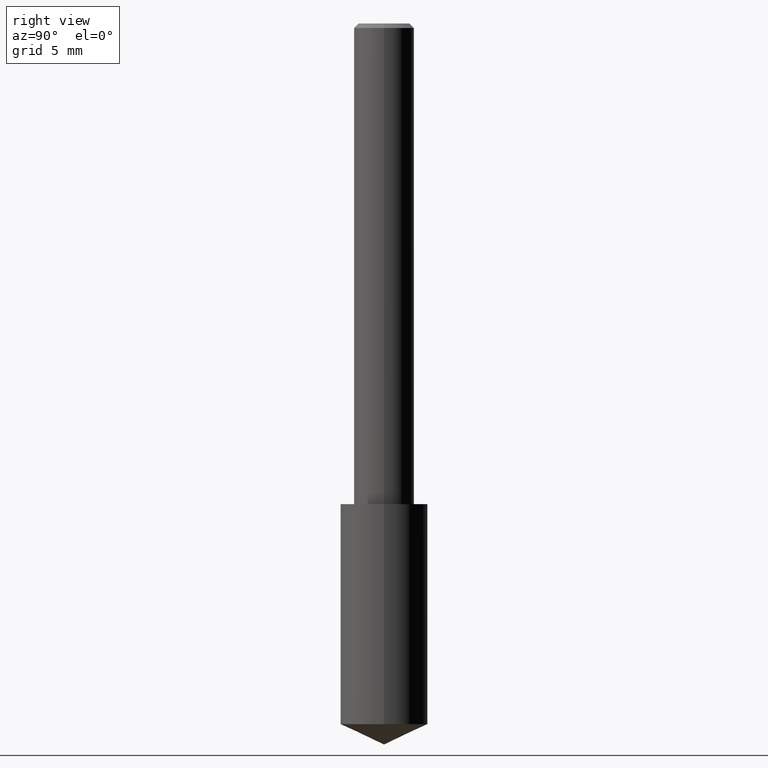
[diagram: clean part render]
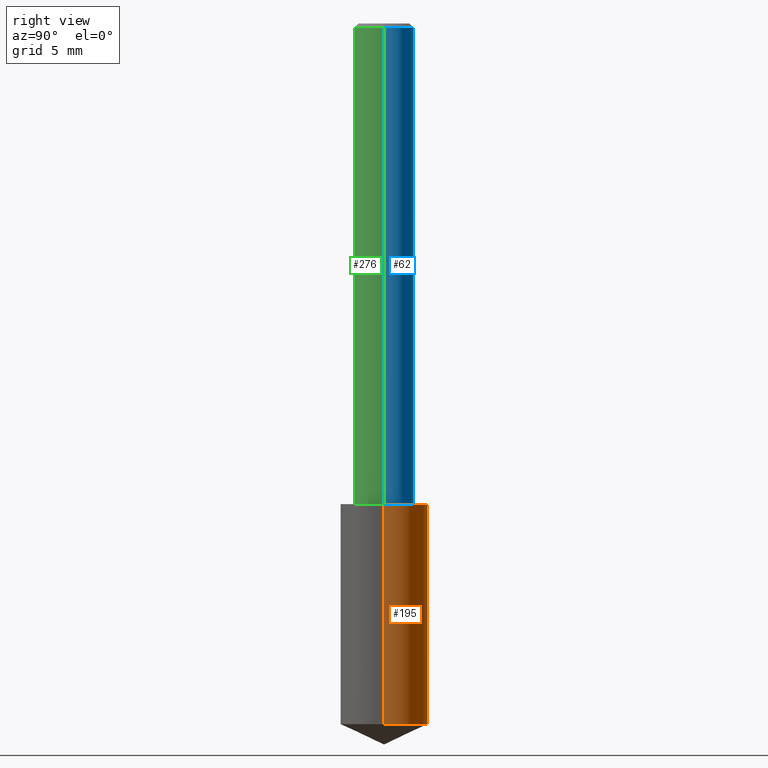
[diagram: same view with three faces highlighted in distinct colors, each labeled with its STEP entity id]
A machine part, right view with three faces highlighted in distinct colors.
Their STEP definitions:

[orange] entity #195 — the highlighted cylindrical surface (partial cylindrical patch) has radius 2.3114 mm, axis along (-0, 0, 1).
#4 = DIRECTION ( 'NONE',  ( -2.445468806185136877E-29, 3.491481338843145188E-15, 1.000000000000000000 ) ) ;
#5 = VERTEX_POINT ( 'NONE', #217 ) ;
#19 = CARTESIAN_POINT ( 'NONE',  ( -0.09099999999999999756, -2.844887449301455417E-15, -1.000000000000000222 ) ) ;
#34 = VECTOR ( 'NONE', #132, 39.37007874015748143 ) ;
#37 = LINE ( 'NONE', #72, #218 ) ;
#45 = CARTESIAN_POINT ( 'NONE',  ( 0.09099999999999999756, -4.126930942512596153E-15, -1.000000000000000222 ) ) ;
#63 = EDGE_CURVE ( 'NONE', #96, #5, #287, .T. ) ;
#64 = EDGE_CURVE ( 'NONE', #96, #103, #37, .T. ) ;
#66 = DIRECTION ( 'NONE',  ( 1.000000000000000000, -6.982962677686269077E-15, 0.000000000000000000 ) ) ;
#72 = CARTESIAN_POINT ( 'NONE',  ( 0.09099999999999999756, -4.126930942512596153E-15, -1.000000000000000222 ) ) ;
#74 = EDGE_CURVE ( 'NONE', #103, #228, #116, .T. ) ;
#95 = CARTESIAN_POINT ( 'NONE',  ( 2.445468806185136877E-29, -3.491481338843145977E-15, -1.000000000000000222 ) ) ;
#96 = VERTEX_POINT ( 'NONE', #110 ) ;
#99 = ORIENTED_EDGE ( 'NONE', *, *, #74, .F. ) ;
#103 = VERTEX_POINT ( 'NONE', #45 ) ;
#108 = AXIS2_PLACEMENT_3D ( 'NONE', #208, #266, #290 ) ;
#110 = CARTESIAN_POINT ( 'NONE',  ( 0.09099999999999999756, -5.724514103652857950E-15, -1.457566003107895414 ) ) ;
#116 = CIRCLE ( 'NONE', #142, 0.09099999999999999756 ) ;
#118 = CARTESIAN_POINT ( 'NONE',  ( 3.564432193556306324E-29, -5.089064499983406985E-15, -1.457566003107895414 ) ) ;
#129 = EDGE_LOOP ( 'NONE', ( #247, #201, #99, #286 ) ) ;
#132 = DIRECTION ( 'NONE',  ( -2.445468806185136877E-29, 3.491481338843145188E-15, 1.000000000000000000 ) ) ;
#142 = AXIS2_PLACEMENT_3D ( 'NONE', #95, #278, #66 ) ;
#164 = CYLINDRICAL_SURFACE ( 'NONE', #108, 0.09099999999999999756 ) ;
#173 = DIRECTION ( 'NONE',  ( -2.445468806185136597E-29, 3.491481338843145583E-15, 1.000000000000000000 ) ) ;
#186 = FACE_OUTER_BOUND ( 'NONE', #129, .T. ) ;
#195 = ADVANCED_FACE ( 'NONE', ( #186 ), #164, .T. ) ;
#196 = EDGE_CURVE ( 'NONE', #5, #228, #257, .T. ) ;
#201 = ORIENTED_EDGE ( 'NONE', *, *, #196, .T. ) ;
#208 = CARTESIAN_POINT ( 'NONE',  ( 2.445468806185137438E-29, -3.491481338843146371E-15, -1.000000000000000222 ) ) ;
#217 = CARTESIAN_POINT ( 'NONE',  ( -0.09099999999999999756, -4.442470610441716820E-15, -1.457566003107895414 ) ) ;
#218 = VECTOR ( 'NONE', #4, 39.37007874015748143 ) ;
#226 = CARTESIAN_POINT ( 'NONE',  ( -0.09099999999999999756, -3.643679029871584738E-15, -1.000000000000000222 ) ) ;
#228 = VERTEX_POINT ( 'NONE', #226 ) ;
#247 = ORIENTED_EDGE ( 'NONE', *, *, #63, .T. ) ;
#257 = LINE ( 'NONE', #19, #34 ) ;
#263 = AXIS2_PLACEMENT_3D ( 'NONE', #118, #173, #275 ) ;
#266 = DIRECTION ( 'NONE',  ( -2.445468806185136597E-29, 3.491481338843145583E-15, 1.000000000000000000 ) ) ;
#275 = DIRECTION ( 'NONE',  ( 1.000000000000000000, -6.982962677686269077E-15, 0.000000000000000000 ) ) ;
#278 = DIRECTION ( 'NONE',  ( -2.445468806185136597E-29, 3.491481338843145583E-15, 1.000000000000000000 ) ) ;
#286 = ORIENTED_EDGE ( 'NONE', *, *, #64, .F. ) ;
#287 = CIRCLE ( 'NONE', #263, 0.09099999999999999756 ) ;
#290 = DIRECTION ( 'NONE',  ( 1.000000000000000000, -6.982962677686263555E-15, 0.000000000000000000 ) ) ;

[blue] entity #62 — the highlighted cylindrical surface (edge-blend (fillet) strip) has radius 1.5875 mm, axis along (-0, 0, 1).
#1 = CARTESIAN_POINT ( 'NONE',  ( 0.06250000000000000000, -4.691678049070464390E-16, -0.009375000000000067307 ) ) ;
#3 = DIRECTION ( 'NONE',  ( 1.000000000000000000, -6.982962677686266711E-15, 4.876176775795935793E-29 ) ) ;
#12 = EDGE_CURVE ( 'NONE', #280, #284, #171, .T. ) ;
#17 = LINE ( 'NONE', #300, #148 ) ;
#22 = DIRECTION ( 'NONE',  ( 1.000000000000000000, -6.982962677686266711E-15, 0.000000000000000000 ) ) ;
#27 = CARTESIAN_POINT ( 'NONE',  ( -0.06250000000000006939, 4.440892098500631092E-16, -3.074334431409319267E-30 ) ) ;
#44 = ORIENTED_EDGE ( 'NONE', *, *, #295, .F. ) ;
#51 = DIRECTION ( 'NONE',  ( -2.445468806185136597E-29, 3.491481338843145583E-15, 1.000000000000000000 ) ) ;
#54 = EDGE_LOOP ( 'NONE', ( #323, #155, #205, #44 ) ) ;
#60 = EDGE_CURVE ( 'NONE', #284, #199, #83, .T. ) ;
#62 = ADVANCED_FACE ( 'NONE', ( #237 ), #337, .T. ) ;
#70 = VECTOR ( 'NONE', #293, 39.37007874015748143 ) ;
#83 = LINE ( 'NONE', #27, #70 ) ;
#105 = DIRECTION ( 'NONE',  ( -2.445468806185136877E-29, 3.491481338843145188E-15, 1.000000000000000000 ) ) ;
#128 = CARTESIAN_POINT ( 'NONE',  ( -0.06250000000000000000, -1.318017778347336672E-15, -0.009375000000000067307 ) ) ;
#143 = EDGE_CURVE ( 'NONE', #301, #199, #315, .T. ) ;
#148 = VECTOR ( 'NONE', #105, 39.37007874015748143 ) ;
#155 = ORIENTED_EDGE ( 'NONE', *, *, #60, .T. ) ;
#171 = CIRCLE ( 'NONE', #193, 0.06250000000000012490 ) ;
#193 = AXIS2_PLACEMENT_3D ( 'NONE', #214, #51, #307 ) ;
#199 = VERTEX_POINT ( 'NONE', #128 ) ;
#200 = CARTESIAN_POINT ( 'NONE',  ( 0.06250000000000012490, -3.927916506198539224E-15, -1.000000000000000222 ) ) ;
#203 = DIRECTION ( 'NONE',  ( -2.445468806185136597E-29, 3.491481338843145583E-15, 1.000000000000000000 ) ) ;
#205 = ORIENTED_EDGE ( 'NONE', *, *, #143, .F. ) ;
#214 = CARTESIAN_POINT ( 'NONE',  ( 2.445468806185137438E-29, -3.491481338843146371E-15, -1.000000000000000222 ) ) ;
#237 = FACE_OUTER_BOUND ( 'NONE', #54, .T. ) ;
#243 = CARTESIAN_POINT ( 'NONE',  ( -0.06250000000000012490, -1.318017778347335489E-15, -1.000000000000000222 ) ) ;
#246 = CARTESIAN_POINT ( 'NONE',  ( 0.000000000000000000, 0.000000000000000000, 0.000000000000000000 ) ) ;
#253 = AXIS2_PLACEMENT_3D ( 'NONE', #246, #203, #3 ) ;
#280 = VERTEX_POINT ( 'NONE', #200 ) ;
#281 = AXIS2_PLACEMENT_3D ( 'NONE', #291, #305, #22 ) ;
#284 = VERTEX_POINT ( 'NONE', #243 ) ;
#291 = CARTESIAN_POINT ( 'NONE',  ( 2.292627005798582375E-31, -3.273263755165472650E-17, -0.009375000000000067307 ) ) ;
#293 = DIRECTION ( 'NONE',  ( -2.445468806185136877E-29, 3.491481338843145188E-15, 1.000000000000000000 ) ) ;
#295 = EDGE_CURVE ( 'NONE', #280, #301, #17, .T. ) ;
#300 = CARTESIAN_POINT ( 'NONE',  ( 0.06250000000000006939, -4.364351673553921624E-16, 3.047610484872463374E-30 ) ) ;
#301 = VERTEX_POINT ( 'NONE', #1 ) ;
#305 = DIRECTION ( 'NONE',  ( -2.445468806185136597E-29, 3.491481338843145583E-15, 1.000000000000000000 ) ) ;
#307 = DIRECTION ( 'NONE',  ( 1.000000000000000000, -6.982962677686264344E-15, 0.000000000000000000 ) ) ;
#315 = CIRCLE ( 'NONE', #281, 0.06250000000000000000 ) ;
#323 = ORIENTED_EDGE ( 'NONE', *, *, #12, .T. ) ;
#337 = CYLINDRICAL_SURFACE ( 'NONE', #253, 0.06250000000000006939 ) ;

[green] entity #276 — the highlighted cylindrical surface (edge-blend (fillet) strip) has radius 1.5875 mm, axis along (-0, 0, 1).
#1 = CARTESIAN_POINT ( 'NONE',  ( 0.06250000000000000000, -4.691678049070464390E-16, -0.009375000000000067307 ) ) ;
#9 = ORIENTED_EDGE ( 'NONE', *, *, #325, .T. ) ;
#17 = LINE ( 'NONE', #300, #148 ) ;
#24 = EDGE_CURVE ( 'NONE', #199, #301, #211, .T. ) ;
#27 = CARTESIAN_POINT ( 'NONE',  ( -0.06250000000000006939, 4.440892098500631092E-16, -3.074334431409319267E-30 ) ) ;
#31 = DIRECTION ( 'NONE',  ( 1.000000000000000000, -6.982962677686264344E-15, 0.000000000000000000 ) ) ;
#39 = DIRECTION ( 'NONE',  ( 1.000000000000000000, -6.982962677686266711E-15, 4.876176775795935793E-29 ) ) ;
#42 = AXIS2_PLACEMENT_3D ( 'NONE', #162, #59, #31 ) ;
#43 = CARTESIAN_POINT ( 'NONE',  ( 0.000000000000000000, 0.000000000000000000, 0.000000000000000000 ) ) ;
#49 = CIRCLE ( 'NONE', #42, 0.06250000000000012490 ) ;
#59 = DIRECTION ( 'NONE',  ( -2.445468806185136597E-29, 3.491481338843145583E-15, 1.000000000000000000 ) ) ;
#60 = EDGE_CURVE ( 'NONE', #284, #199, #83, .T. ) ;
#70 = VECTOR ( 'NONE', #293, 39.37007874015748143 ) ;
#73 = ORIENTED_EDGE ( 'NONE', *, *, #24, .F. ) ;
#83 = LINE ( 'NONE', #27, #70 ) ;
#105 = DIRECTION ( 'NONE',  ( -2.445468806185136877E-29, 3.491481338843145188E-15, 1.000000000000000000 ) ) ;
#119 = ORIENTED_EDGE ( 'NONE', *, *, #295, .T. ) ;
#128 = CARTESIAN_POINT ( 'NONE',  ( -0.06250000000000000000, -1.318017778347336672E-15, -0.009375000000000067307 ) ) ;
#148 = VECTOR ( 'NONE', #105, 39.37007874015748143 ) ;
#162 = CARTESIAN_POINT ( 'NONE',  ( 2.445468806185137438E-29, -3.491481338843146371E-15, -1.000000000000000222 ) ) ;
#180 = EDGE_LOOP ( 'NONE', ( #277, #9, #119, #73 ) ) ;
#194 = AXIS2_PLACEMENT_3D ( 'NONE', #43, #204, #39 ) ;
#199 = VERTEX_POINT ( 'NONE', #128 ) ;
#200 = CARTESIAN_POINT ( 'NONE',  ( 0.06250000000000012490, -3.927916506198539224E-15, -1.000000000000000222 ) ) ;
#204 = DIRECTION ( 'NONE',  ( -2.445468806185136597E-29, 3.491481338843145583E-15, 1.000000000000000000 ) ) ;
#210 = DIRECTION ( 'NONE',  ( 1.000000000000000000, -6.982962677686266711E-15, 0.000000000000000000 ) ) ;
#211 = CIRCLE ( 'NONE', #224, 0.06250000000000000000 ) ;
#224 = AXIS2_PLACEMENT_3D ( 'NONE', #335, #330, #210 ) ;
#243 = CARTESIAN_POINT ( 'NONE',  ( -0.06250000000000012490, -1.318017778347335489E-15, -1.000000000000000222 ) ) ;
#276 = ADVANCED_FACE ( 'NONE', ( #279 ), #328, .T. ) ;
#277 = ORIENTED_EDGE ( 'NONE', *, *, #60, .F. ) ;
#279 = FACE_OUTER_BOUND ( 'NONE', #180, .T. ) ;
#280 = VERTEX_POINT ( 'NONE', #200 ) ;
#284 = VERTEX_POINT ( 'NONE', #243 ) ;
#293 = DIRECTION ( 'NONE',  ( -2.445468806185136877E-29, 3.491481338843145188E-15, 1.000000000000000000 ) ) ;
#295 = EDGE_CURVE ( 'NONE', #280, #301, #17, .T. ) ;
#300 = CARTESIAN_POINT ( 'NONE',  ( 0.06250000000000006939, -4.364351673553921624E-16, 3.047610484872463374E-30 ) ) ;
#301 = VERTEX_POINT ( 'NONE', #1 ) ;
#325 = EDGE_CURVE ( 'NONE', #284, #280, #49, .T. ) ;
#328 = CYLINDRICAL_SURFACE ( 'NONE', #194, 0.06250000000000006939 ) ;
#330 = DIRECTION ( 'NONE',  ( -2.445468806185136597E-29, 3.491481338843145583E-15, 1.000000000000000000 ) ) ;
#335 = CARTESIAN_POINT ( 'NONE',  ( 2.292627005798582375E-31, -3.273263755165472650E-17, -0.009375000000000067307 ) ) ;